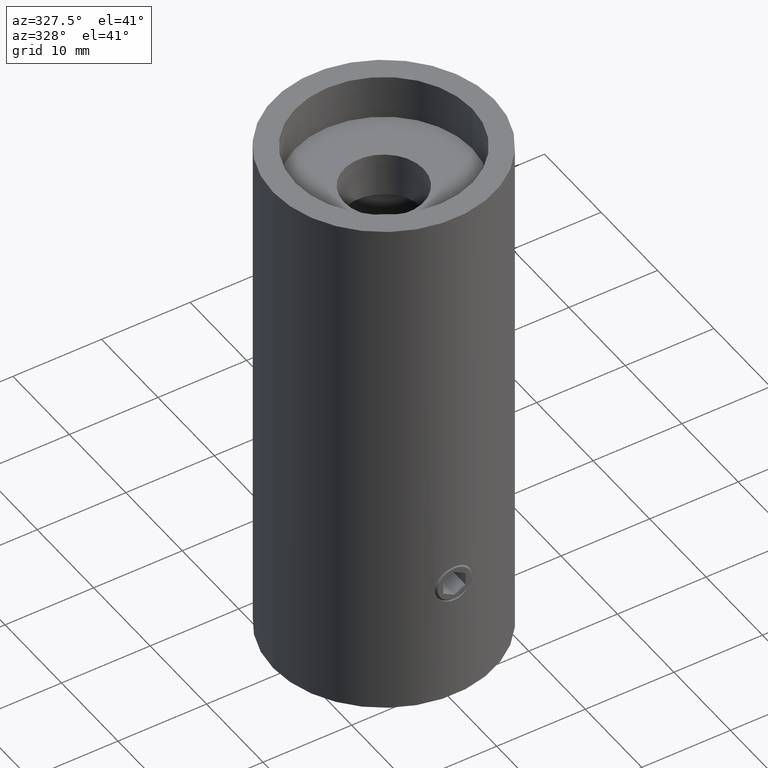
[diagram: clean part render]
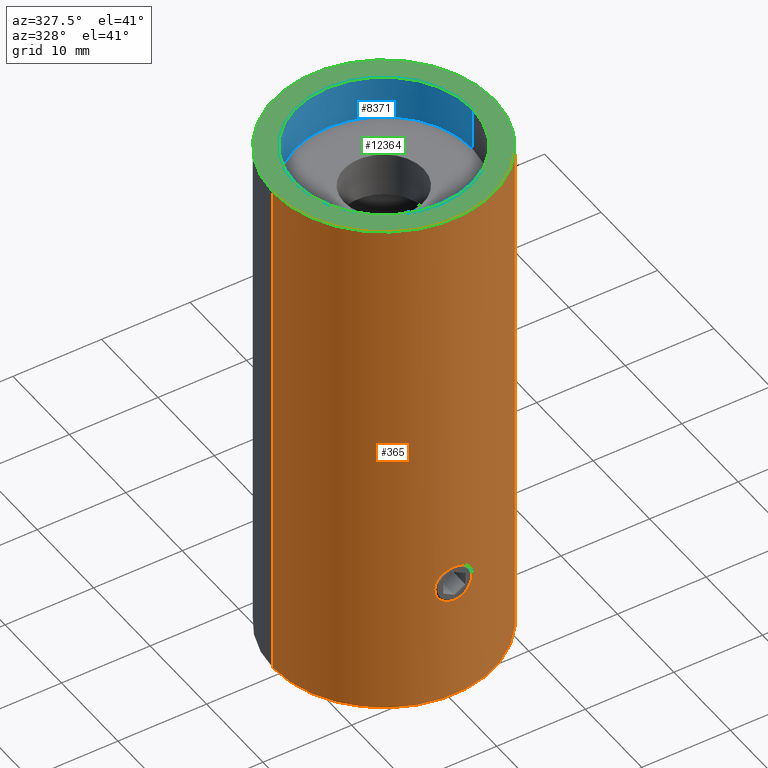
[diagram: same view with three faces highlighted in distinct colors, each labeled with its STEP entity id]
A machine part, auxiliary view with three faces highlighted in distinct colors.
Their STEP definitions:

[orange] entity #365 — the highlighted cylindrical surface (partial cylindrical patch) has radius 12.5 mm, axis along (0, 0, 1).
#108 = VERTEX_POINT ( 'NONE', #4628 ) ;
#365 = ADVANCED_FACE ( 'NONE', ( #10480, #10170 ), #1832, .T. ) ;
#426 = CARTESIAN_POINT ( 'NONE',  ( 1.281603546142744000, -12.43465773738692400, -39.33073217338094500 ) ) ;
#464 = CARTESIAN_POINT ( 'NONE',  ( 1.886269248244664800, -12.35697594623954900, -40.06673891888830500 ) ) ;
#508 = CARTESIAN_POINT ( 'NONE',  ( 2.099916014006711700, -12.32235175367555200, -40.85999754125779000 ) ) ;
#545 = CARTESIAN_POINT ( 'NONE',  ( -1.387157736859886200, -12.42318353256700700, -39.41730888163930800 ) ) ;
#587 = CARTESIAN_POINT ( 'NONE',  ( -0.6771302859603577400, -12.48229535687992400, -39.00741299142409000 ) ) ;
#640 = DIRECTION ( 'NONE',  ( -0.0000000000000000000, -0.0000000000000000000, 1.000000000000000000 ) ) ;
#683 = CARTESIAN_POINT ( 'NONE',  ( -1.388600539506602800, -12.42301355294200100, -42.58129182168067200 ) ) ;
#775 = DIRECTION ( 'NONE',  ( -0.0000000000000000000, -0.0000000000000000000, 1.000000000000000000 ) ) ;
#1056 = VERTEX_POINT ( 'NONE', #13225 ) ;
#1146 = LINE ( 'NONE', #10959, #6362 ) ;
#1528 = CARTESIAN_POINT ( 'NONE',  ( 1.992047017919824600, -12.34036526571288300, -40.32122418959717400 ) ) ;
#1562 = EDGE_CURVE ( 'NONE', #10046, #2409, #1146, .T. ) ;
#1567 = CARTESIAN_POINT ( 'NONE',  ( -0.6779383900031859000, -12.48225234873648900, -42.99232023470802500 ) ) ;
#1656 = CARTESIAN_POINT ( 'NONE',  ( -0.2765420468446733200, -12.49766874747619900, -38.91375219935562800 ) ) ;
#1709 = CARTESIAN_POINT ( 'NONE',  ( -0.5462078688293384700, -12.48878923632492300, -38.96762150341147900 ) ) ;
#1751 = CARTESIAN_POINT ( 'NONE',  ( -1.281348397245135800, -12.43467607152728100, -39.33061881205957600 ) ) ;
#1832 = CYLINDRICAL_SURFACE ( 'NONE', #2302, 12.50000000000000000 ) ;
#2295 = EDGE_CURVE ( 'NONE', #108, #2409, #11455, .T. ) ;
#2302 = AXIS2_PLACEMENT_3D ( 'NONE', #12905, #7829, #2620 ) ;
#2409 = VERTEX_POINT ( 'NONE', #12187 ) ;
#2428 = CARTESIAN_POINT ( 'NONE',  ( 2.033241785620699000, -12.33355821179406500, -41.54287156260015500 ) ) ;
#2610 = CARTESIAN_POINT ( 'NONE',  ( 2.086126021674023600, -12.32472383621019300, -40.72283507755570000 ) ) ;
#2620 = DIRECTION ( 'NONE',  ( 1.000000000000000000, 0.0000000000000000000, 0.0000000000000000000 ) ) ;
#2678 = CARTESIAN_POINT ( 'NONE',  ( 0.2762664775608889600, -12.49768328457756200, -43.08633728056845100 ) ) ;
#2690 = CARTESIAN_POINT ( 'NONE',  ( 12.50000000000000000, 0.0000000000000000000, -55.00000000000000700 ) ) ;
#2741 = CARTESIAN_POINT ( 'NONE',  ( -0.1371844661457297400, -12.50000000000000000, -38.90000000000001300 ) ) ;
#2781 = CARTESIAN_POINT ( 'NONE',  ( -1.582696428115961000, -12.39978901785039300, -39.61284832138044000 ) ) ;
#3316 = AXIS2_PLACEMENT_3D ( 'NONE', #3918, #775, #10295 ) ;
#3462 = B_SPLINE_CURVE_WITH_KNOTS ( 'NONE', 3,
 ( #10796, #6661, #11811, #5649, #11860, #426, #7727, #6761, #12986, #9851, #464, #1528, #9720, #2610, #508, #3599, #7815, #2428, #3467, #5552, #12893, #10755, #4511, #5505, #12855, #7638, #12121, #2678, #6393, #8667 ),
 .UNSPECIFIED., .F., .F.,
 ( 4, 2, 2, 2, 2, 2, 2, 2, 2, 2, 2, 2, 2, 2, 4 ),
 ( 0.006577226265834324400, 0.007399174158320381700, 0.007810148104563405900, 0.008221122050806431100, 0.008632095997049454500, 0.009043069943292479700, 0.009454043889535503100, 0.009865017835778528200, 0.01027599178202155200, 0.01068696572826457700, 0.01109793967450760000, 0.01150891362075062500, 0.01233086151323668800, 0.01274183545947972500, 0.01315280940572276100 ),
 .UNSPECIFIED. ) ;
#3467 = CARTESIAN_POINT ( 'NONE',  ( 1.992762697854683300, -12.34024839959371400, -41.67659720882248600 ) ) ;
#3599 = CARTESIAN_POINT ( 'NONE',  ( 2.100083223394553200, -12.32232325748718100, -41.13747148487028200 ) ) ;
#3727 = CARTESIAN_POINT ( 'NONE',  ( -6.571925209596472000E-017, -12.50000000000000000, -43.10000000000000900 ) ) ;
#3731 = CARTESIAN_POINT ( 'NONE',  ( -1.678584206747426800, -12.38831158150507200, -42.29117628362158900 ) ) ;
#3826 = CARTESIAN_POINT ( 'NONE',  ( -2.044525624529535800, -12.33211929933789400, -41.55200599510585800 ) ) ;
#3853 = DIRECTION ( 'NONE',  ( 1.000000000000000000, 0.0000000000000000000, 0.0000000000000000000 ) ) ;
#3918 = CARTESIAN_POINT ( 'NONE',  ( 0.0000000000000000000, 0.0000000000000000000, -55.00000000000000700 ) ) ;
#4483 = VERTEX_POINT ( 'NONE', #5489 ) ;
#4511 = CARTESIAN_POINT ( 'NONE',  ( 1.582460249035300800, -12.39980942031196800, -42.38725828507372700 ) ) ;
#4628 = CARTESIAN_POINT ( 'NONE',  ( -12.50000000000000000, 1.530808498934191500E-015, 4.999999999999990200 ) ) ;
#4781 = DIRECTION ( 'NONE',  ( -0.0000000000000000000, -0.0000000000000000000, 1.000000000000000000 ) ) ;
#4844 = CARTESIAN_POINT ( 'NONE',  ( -0.9321576868460949000, -12.46584558724483200, -42.88680216904710100 ) ) ;
#4887 = CARTESIAN_POINT ( 'NONE',  ( -2.086330489974700600, -12.32468933921310700, -40.72412159197898500 ) ) ;
#5195 = LINE ( 'NONE', #6905, #10949 ) ;
#5489 = CARTESIAN_POINT ( 'NONE',  ( 2.571759258073990500E-016, -12.50000000000000000, -38.90000000000001300 ) ) ;
#5505 = CARTESIAN_POINT ( 'NONE',  ( 1.292831960822519600, -12.43448438498407400, -42.67727441946927800 ) ) ;
#5552 = CARTESIAN_POINT ( 'NONE',  ( 1.887587319264242900, -12.35677335900392400, -41.93053805139836500 ) ) ;
#5649 = CARTESIAN_POINT ( 'NONE',  ( 0.9302022205380904300, -12.46598422166855300, -39.11229286981888000 ) ) ;
#5688 = CARTESIAN_POINT ( 'NONE',  ( -0.1390172217368306500, -12.50000000000000000, -43.10000000000000900 ) ) ;
#5815 = CARTESIAN_POINT ( 'NONE',  ( -1.887385030941209200, -12.35680486868405800, -40.06900153632271600 ) ) ;
#5857 = CARTESIAN_POINT ( 'NONE',  ( -2.099895493303238300, -12.32235525086056600, -41.27528082126492100 ) ) ;
#6015 = AXIS2_PLACEMENT_3D ( 'NONE', #11086, #4781, #3853 ) ;
#6336 = CIRCLE ( 'NONE', #3316, 12.50000000000000000 ) ;
#6362 = VECTOR ( 'NONE', #11048, 1000.000000000000000 ) ;
#6393 = CARTESIAN_POINT ( 'NONE',  ( 0.1389824923851665500, -12.50000000000000000, -43.10000000000000900 ) ) ;
#6423 = B_SPLINE_CURVE_WITH_KNOTS ( 'NONE', 3,
 ( #11108, #5688, #9931, #13116, #1567, #4844, #12164, #13072, #683, #3731, #13204, #3826, #5857, #9031, #4887, #8979, #6950, #5815, #8940, #9982, #2781, #545, #1751, #11158, #7993, #587, #1709, #1656, #2741, #6900 ),
 .UNSPECIFIED., .F., .F.,
 ( 4, 2, 2, 2, 2, 2, 2, 2, 2, 2, 2, 2, 2, 2, 4 ),
 ( 6.384964586102608500E-020, 0.0004110766416146560100, 0.0008221532832293120200, 0.001233229924843967900, 0.001644306566458623800, 0.002466459849687920600, 0.003288613132917217700, 0.003699689774531856500, 0.004110766416146494100, 0.004521843057761132900, 0.004932919699375770900, 0.005343996340990409700, 0.005755072982605048500, 0.006166149624219686500, 0.006577226265834324400 ),
 .UNSPECIFIED. ) ;
#6640 = EDGE_LOOP ( 'NONE', ( #7883, #12371, #12168, #10404 ) ) ;
#6661 = CARTESIAN_POINT ( 'NONE',  ( 0.2743003893079653000, -12.50000000000000000, -38.90000000000001300 ) ) ;
#6761 = CARTESIAN_POINT ( 'NONE',  ( 1.580836478937783300, -12.40001885819545000, -39.61086794391901100 ) ) ;
#6900 = CARTESIAN_POINT ( 'NONE',  ( 2.571759258073990500E-016, -12.50000000000000000, -38.90000000000001300 ) ) ;
#6905 = CARTESIAN_POINT ( 'NONE',  ( -12.50000000000000000, 1.530808498934191500E-015, 0.0000000000000000000 ) ) ;
#6944 = ORIENTED_EDGE ( 'NONE', *, *, #7837, .T. ) ;
#6950 = CARTESIAN_POINT ( 'NONE',  ( -1.992840048957693000, -12.34023651949286200, -40.32356158176762800 ) ) ;
#7638 = CARTESIAN_POINT ( 'NONE',  ( 0.6802983101495043700, -12.48211517639016700, -42.99145437396367000 ) ) ;
#7727 = CARTESIAN_POINT ( 'NONE',  ( 1.387160506701217600, -12.42317581721323100, -39.41743323331348800 ) ) ;
#7815 = CARTESIAN_POINT ( 'NONE',  ( 2.086551808546027100, -12.32465138950227300, -41.27401321597194100 ) ) ;
#7829 = DIRECTION ( 'NONE',  ( -0.0000000000000000000, -0.0000000000000000000, 1.000000000000000000 ) ) ;
#7837 = EDGE_CURVE ( 'NONE', #4483, #10856, #3462, .T. ) ;
#7883 = ORIENTED_EDGE ( 'NONE', *, *, #12299, .F. ) ;
#7993 = CARTESIAN_POINT ( 'NONE',  ( -0.9311833701841359900, -12.46591754872634500, -39.11272526059327200 ) ) ;
#8667 = CARTESIAN_POINT ( 'NONE',  ( -6.571925209596472000E-017, -12.50000000000000000, -43.10000000000000900 ) ) ;
#8940 = CARTESIAN_POINT ( 'NONE',  ( -1.821708534087457300, -12.36678065982763100, -39.94640674338822400 ) ) ;
#8979 = CARTESIAN_POINT ( 'NONE',  ( -2.032587617967190200, -12.33366651879308900, -40.45459062650451200 ) ) ;
#9031 = CARTESIAN_POINT ( 'NONE',  ( -2.100052025693300600, -12.32232857426643600, -40.86355718150325300 ) ) ;
#9720 = CARTESIAN_POINT ( 'NONE',  ( 2.032484663200843800, -12.33368337160504200, -40.45433685630016600 ) ) ;
#9851 = CARTESIAN_POINT ( 'NONE',  ( 1.821665953450997600, -12.36678782163335900, -39.94630415920708100 ) ) ;
#9885 = ORIENTED_EDGE ( 'NONE', *, *, #10026, .T. ) ;
#9931 = CARTESIAN_POINT ( 'NONE',  ( -0.2756623671610638500, -12.49768326621186500, -43.08633249971021700 ) ) ;
#9982 = CARTESIAN_POINT ( 'NONE',  ( -1.669773426702779300, -12.38820982123450100, -39.71916533579772600 ) ) ;
#10026 = EDGE_CURVE ( 'NONE', #10856, #4483, #6423, .T. ) ;
#10046 = VERTEX_POINT ( 'NONE', #2690 ) ;
#10170 = FACE_BOUND ( 'NONE', #11049, .T. ) ;
#10295 = DIRECTION ( 'NONE',  ( 1.000000000000000000, 0.0000000000000000000, 0.0000000000000000000 ) ) ;
#10404 = ORIENTED_EDGE ( 'NONE', *, *, #2295, .F. ) ;
#10480 = FACE_OUTER_BOUND ( 'NONE', #6640, .T. ) ;
#10755 = CARTESIAN_POINT ( 'NONE',  ( 1.670798748957215800, -12.38807301078725200, -42.27956437913016400 ) ) ;
#10796 = CARTESIAN_POINT ( 'NONE',  ( 2.571759258073990500E-016, -12.50000000000000000, -38.90000000000001300 ) ) ;
#10856 = VERTEX_POINT ( 'NONE', #3727 ) ;
#10949 = VECTOR ( 'NONE', #640, 1000.000000000000000 ) ;
#10959 = CARTESIAN_POINT ( 'NONE',  ( 12.50000000000000000, 0.0000000000000000000, 0.0000000000000000000 ) ) ;
#11048 = DIRECTION ( 'NONE',  ( -0.0000000000000000000, -0.0000000000000000000, 1.000000000000000000 ) ) ;
#11049 = EDGE_LOOP ( 'NONE', ( #9885, #6944 ) ) ;
#11086 = CARTESIAN_POINT ( 'NONE',  ( 0.0000000000000000000, 0.0000000000000000000, 4.999999999999990200 ) ) ;
#11108 = CARTESIAN_POINT ( 'NONE',  ( -6.571925209596472000E-017, -12.50000000000000000, -43.10000000000000900 ) ) ;
#11158 = CARTESIAN_POINT ( 'NONE',  ( -1.054112223713822100, -12.45599735624381300, -39.17858991833549000 ) ) ;
#11264 = EDGE_CURVE ( 'NONE', #1056, #10046, #6336, .T. ) ;
#11455 = CIRCLE ( 'NONE', #6015, 12.50000000000000000 ) ;
#11811 = CARTESIAN_POINT ( 'NONE',  ( 0.5510555997337232000, -12.49041604070637000, -38.95520288348102900 ) ) ;
#11860 = CARTESIAN_POINT ( 'NONE',  ( 1.052645575539825000, -12.45612933409646500, -39.17766632617196600 ) ) ;
#12121 = CARTESIAN_POINT ( 'NONE',  ( 0.5474908082748964900, -12.48874150837816700, -43.03208765307214600 ) ) ;
#12164 = CARTESIAN_POINT ( 'NONE',  ( -1.052690134217554100, -12.45612162279729600, -42.82226777203640500 ) ) ;
#12168 = ORIENTED_EDGE ( 'NONE', *, *, #1562, .T. ) ;
#12187 = CARTESIAN_POINT ( 'NONE',  ( 12.50000000000000000, 0.0000000000000000000, 4.999999999999990200 ) ) ;
#12299 = EDGE_CURVE ( 'NONE', #1056, #108, #5195, .T. ) ;
#12371 = ORIENTED_EDGE ( 'NONE', *, *, #11264, .T. ) ;
#12855 = CARTESIAN_POINT ( 'NONE',  ( 1.059040836926603800, -12.45762628977003500, -42.83390778481553000 ) ) ;
#12893 = CARTESIAN_POINT ( 'NONE',  ( 1.823189292361668200, -12.36656387944243600, -42.05111096658417600 ) ) ;
#12905 = CARTESIAN_POINT ( 'NONE',  ( 0.0000000000000000000, 0.0000000000000000000, 0.0000000000000000000 ) ) ;
#12986 = CARTESIAN_POINT ( 'NONE',  ( 1.669446844424484800, -12.38825472392713100, -39.71871587674398500 ) ) ;
#13072 = CARTESIAN_POINT ( 'NONE',  ( -1.280796030087372900, -12.43473698676050900, -42.66984366962719100 ) ) ;
#13116 = CARTESIAN_POINT ( 'NONE',  ( -0.5444173614143049700, -12.48886249823464200, -43.03282630261580300 ) ) ;
#13204 = CARTESIAN_POINT ( 'NONE',  ( -1.834949845526015400, -12.36503985059749100, -42.05723919355780500 ) ) ;
#13225 = CARTESIAN_POINT ( 'NONE',  ( -12.50000000000000000, 1.530808498934191500E-015, -55.00000000000000700 ) ) ;

[blue] entity #8371 — the highlighted cylindrical surface (partial cylindrical patch) has radius 10 mm, axis along (0, 0, 1).
#323 = VECTOR ( 'NONE', #13327, 1000.000000000000000 ) ;
#427 = DIRECTION ( 'NONE',  ( 1.000000000000000000, 0.0000000000000000000, 0.0000000000000000000 ) ) ;
#997 = DIRECTION ( 'NONE',  ( -0.0000000000000000000, -0.0000000000000000000, 1.000000000000000000 ) ) ;
#1140 = ORIENTED_EDGE ( 'NONE', *, *, #5327, .F. ) ;
#1182 = FACE_OUTER_BOUND ( 'NONE', #1534, .T. ) ;
#1273 = VERTEX_POINT ( 'NONE', #6515 ) ;
#1475 = CARTESIAN_POINT ( 'NONE',  ( 10.00000000000000000, 0.0000000000000000000, 4.999999999999990200 ) ) ;
#1534 = EDGE_LOOP ( 'NONE', ( #5396, #1140, #11153, #8406 ) ) ;
#1610 = AXIS2_PLACEMENT_3D ( 'NONE', #9805, #3564, #6713 ) ;
#1919 = CIRCLE ( 'NONE', #1610, 10.00000000000000000 ) ;
#2578 = DIRECTION ( 'NONE',  ( 1.000000000000000000, 0.0000000000000000000, 0.0000000000000000000 ) ) ;
#2819 = LINE ( 'NONE', #5980, #323 ) ;
#3523 = CYLINDRICAL_SURFACE ( 'NONE', #11344, 10.00000000000000000 ) ;
#3564 = DIRECTION ( 'NONE',  ( -0.0000000000000000000, -0.0000000000000000000, 1.000000000000000000 ) ) ;
#5101 = LINE ( 'NONE', #6224, #9547 ) ;
#5288 = EDGE_CURVE ( 'NONE', #12279, #1273, #1919, .T. ) ;
#5327 = EDGE_CURVE ( 'NONE', #11219, #6414, #11538, .T. ) ;
#5396 = ORIENTED_EDGE ( 'NONE', *, *, #11614, .F. ) ;
#5604 = DIRECTION ( 'NONE',  ( -0.0000000000000000000, -0.0000000000000000000, 1.000000000000000000 ) ) ;
#5980 = CARTESIAN_POINT ( 'NONE',  ( -10.00000000000000000, 1.224646799147353300E-015, 0.0000000000000000000 ) ) ;
#6224 = CARTESIAN_POINT ( 'NONE',  ( 10.00000000000000000, 0.0000000000000000000, 0.0000000000000000000 ) ) ;
#6414 = VERTEX_POINT ( 'NONE', #10028 ) ;
#6515 = CARTESIAN_POINT ( 'NONE',  ( -10.00000000000000000, 1.224646799147353300E-015, 4.999999999999990200 ) ) ;
#6713 = DIRECTION ( 'NONE',  ( 1.000000000000000000, 0.0000000000000000000, 0.0000000000000000000 ) ) ;
#6824 = CARTESIAN_POINT ( 'NONE',  ( 0.0000000000000000000, 0.0000000000000000000, 0.0000000000000000000 ) ) ;
#7808 = CARTESIAN_POINT ( 'NONE',  ( 10.00000000000000000, 0.0000000000000000000, 0.0000000000000000000 ) ) ;
#8027 = EDGE_CURVE ( 'NONE', #11219, #12279, #5101, .T. ) ;
#8371 = ADVANCED_FACE ( 'NONE', ( #1182 ), #3523, .F. ) ;
#8406 = ORIENTED_EDGE ( 'NONE', *, *, #5288, .T. ) ;
#9410 = AXIS2_PLACEMENT_3D ( 'NONE', #11025, #5604, #427 ) ;
#9547 = VECTOR ( 'NONE', #997, 1000.000000000000000 ) ;
#9805 = CARTESIAN_POINT ( 'NONE',  ( 0.0000000000000000000, 0.0000000000000000000, 4.999999999999990200 ) ) ;
#10028 = CARTESIAN_POINT ( 'NONE',  ( -10.00000000000000000, 1.224646799147353300E-015, 0.0000000000000000000 ) ) ;
#11025 = CARTESIAN_POINT ( 'NONE',  ( 0.0000000000000000000, 0.0000000000000000000, 0.0000000000000000000 ) ) ;
#11034 = DIRECTION ( 'NONE',  ( -0.0000000000000000000, -0.0000000000000000000, 1.000000000000000000 ) ) ;
#11153 = ORIENTED_EDGE ( 'NONE', *, *, #8027, .T. ) ;
#11219 = VERTEX_POINT ( 'NONE', #7808 ) ;
#11344 = AXIS2_PLACEMENT_3D ( 'NONE', #6824, #11034, #2578 ) ;
#11538 = CIRCLE ( 'NONE', #9410, 10.00000000000000000 ) ;
#11614 = EDGE_CURVE ( 'NONE', #6414, #1273, #2819, .T. ) ;
#12279 = VERTEX_POINT ( 'NONE', #1475 ) ;
#13327 = DIRECTION ( 'NONE',  ( -0.0000000000000000000, -0.0000000000000000000, 1.000000000000000000 ) ) ;

[green] entity #12364 — the highlighted planar face has unit normal (0, 0, -1).
#108 = VERTEX_POINT ( 'NONE', #4628 ) ;
#432 = ORIENTED_EDGE ( 'NONE', *, *, #6258, .F. ) ;
#459 = AXIS2_PLACEMENT_3D ( 'NONE', #1016, #4194, #11481 ) ;
#938 = ORIENTED_EDGE ( 'NONE', *, *, #2295, .T. ) ;
#1016 = CARTESIAN_POINT ( 'NONE',  ( 0.0000000000000000000, 0.0000000000000000000, 4.999999999999990200 ) ) ;
#1273 = VERTEX_POINT ( 'NONE', #6515 ) ;
#1475 = CARTESIAN_POINT ( 'NONE',  ( 10.00000000000000000, 0.0000000000000000000, 4.999999999999990200 ) ) ;
#1610 = AXIS2_PLACEMENT_3D ( 'NONE', #9805, #3564, #6713 ) ;
#1919 = CIRCLE ( 'NONE', #1610, 10.00000000000000000 ) ;
#2295 = EDGE_CURVE ( 'NONE', #108, #2409, #11455, .T. ) ;
#2409 = VERTEX_POINT ( 'NONE', #12187 ) ;
#2600 = DIRECTION ( 'NONE',  ( 1.000000000000000000, 0.0000000000000000000, 0.0000000000000000000 ) ) ;
#2705 = AXIS2_PLACEMENT_3D ( 'NONE', #3594, #11855, #2600 ) ;
#2786 = PLANE ( 'NONE',  #8287 ) ;
#3107 = EDGE_LOOP ( 'NONE', ( #8679, #938 ) ) ;
#3564 = DIRECTION ( 'NONE',  ( -0.0000000000000000000, -0.0000000000000000000, 1.000000000000000000 ) ) ;
#3594 = CARTESIAN_POINT ( 'NONE',  ( 0.0000000000000000000, 0.0000000000000000000, 4.999999999999990200 ) ) ;
#3853 = DIRECTION ( 'NONE',  ( 1.000000000000000000, 0.0000000000000000000, 0.0000000000000000000 ) ) ;
#3967 = DIRECTION ( 'NONE',  ( -1.000000000000000000, 0.0000000000000000000, -0.0000000000000000000 ) ) ;
#4194 = DIRECTION ( 'NONE',  ( -0.0000000000000000000, -0.0000000000000000000, 1.000000000000000000 ) ) ;
#4628 = CARTESIAN_POINT ( 'NONE',  ( -12.50000000000000000, 1.530808498934191500E-015, 4.999999999999990200 ) ) ;
#4781 = DIRECTION ( 'NONE',  ( -0.0000000000000000000, -0.0000000000000000000, 1.000000000000000000 ) ) ;
#5288 = EDGE_CURVE ( 'NONE', #12279, #1273, #1919, .T. ) ;
#5449 = ORIENTED_EDGE ( 'NONE', *, *, #5288, .F. ) ;
#5915 = CARTESIAN_POINT ( 'NONE',  ( 0.0000000000000000000, 12.50000000000000000, 4.999999999999990200 ) ) ;
#6015 = AXIS2_PLACEMENT_3D ( 'NONE', #11086, #4781, #3853 ) ;
#6168 = FACE_OUTER_BOUND ( 'NONE', #3107, .T. ) ;
#6258 = EDGE_CURVE ( 'NONE', #1273, #12279, #10392, .T. ) ;
#6515 = CARTESIAN_POINT ( 'NONE',  ( -10.00000000000000000, 1.224646799147353300E-015, 4.999999999999990200 ) ) ;
#6713 = DIRECTION ( 'NONE',  ( 1.000000000000000000, 0.0000000000000000000, 0.0000000000000000000 ) ) ;
#6850 = EDGE_LOOP ( 'NONE', ( #5449, #432 ) ) ;
#8287 = AXIS2_PLACEMENT_3D ( 'NONE', #5915, #11112, #3967 ) ;
#8323 = FACE_BOUND ( 'NONE', #6850, .T. ) ;
#8679 = ORIENTED_EDGE ( 'NONE', *, *, #9953, .T. ) ;
#9805 = CARTESIAN_POINT ( 'NONE',  ( 0.0000000000000000000, 0.0000000000000000000, 4.999999999999990200 ) ) ;
#9953 = EDGE_CURVE ( 'NONE', #2409, #108, #11794, .T. ) ;
#10392 = CIRCLE ( 'NONE', #459, 10.00000000000000000 ) ;
#11086 = CARTESIAN_POINT ( 'NONE',  ( 0.0000000000000000000, 0.0000000000000000000, 4.999999999999990200 ) ) ;
#11112 = DIRECTION ( 'NONE',  ( 0.0000000000000000000, 0.0000000000000000000, -1.000000000000000000 ) ) ;
#11455 = CIRCLE ( 'NONE', #6015, 12.50000000000000000 ) ;
#11481 = DIRECTION ( 'NONE',  ( 1.000000000000000000, 0.0000000000000000000, 0.0000000000000000000 ) ) ;
#11794 = CIRCLE ( 'NONE', #2705, 12.50000000000000000 ) ;
#11855 = DIRECTION ( 'NONE',  ( -0.0000000000000000000, -0.0000000000000000000, 1.000000000000000000 ) ) ;
#12187 = CARTESIAN_POINT ( 'NONE',  ( 12.50000000000000000, 0.0000000000000000000, 4.999999999999990200 ) ) ;
#12279 = VERTEX_POINT ( 'NONE', #1475 ) ;
#12364 = ADVANCED_FACE ( 'NONE', ( #8323, #6168 ), #2786, .F. ) ;